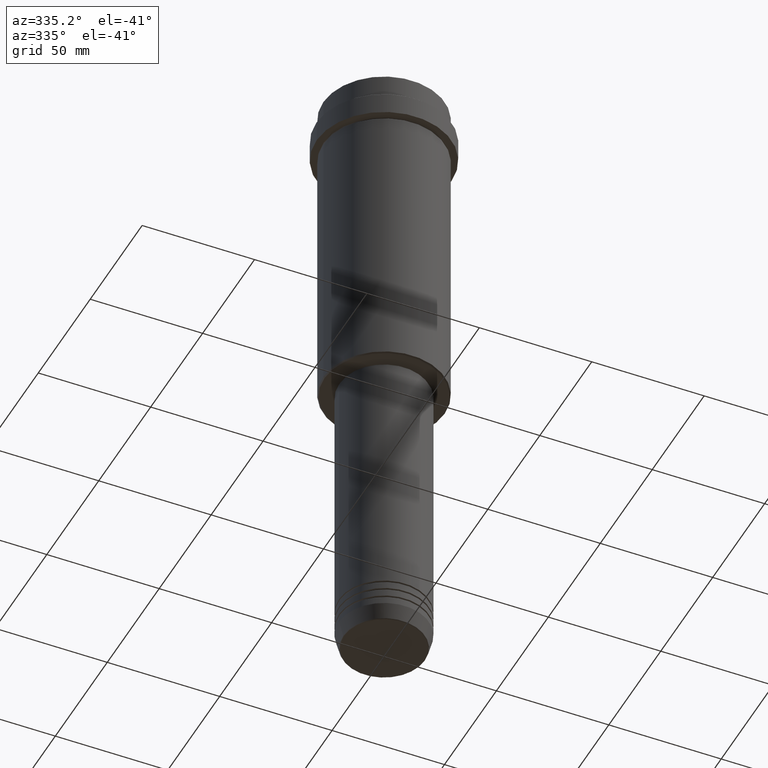
[diagram: clean part render]
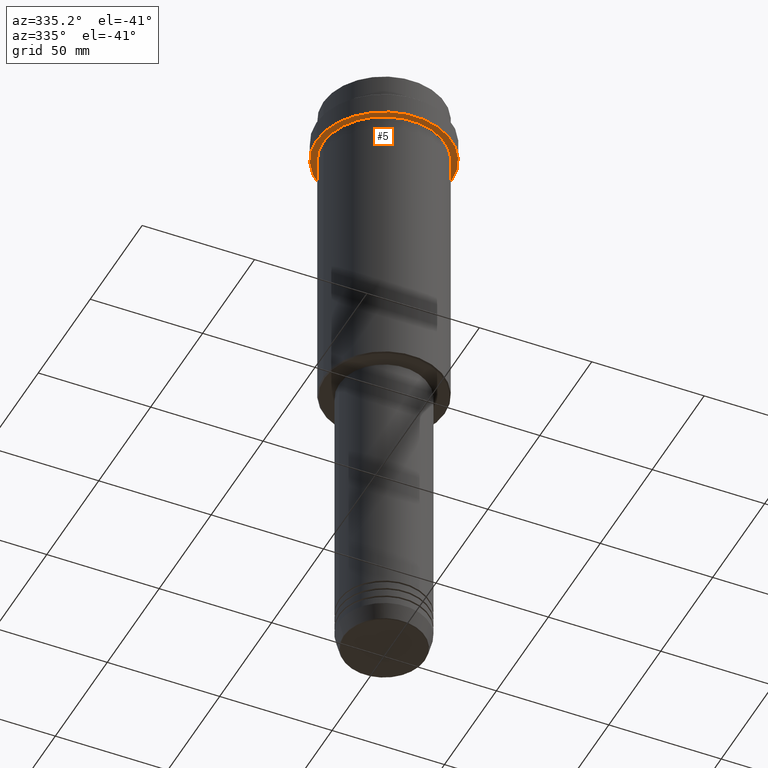
[diagram: same view with one face highlighted and labeled with its STEP entity id]
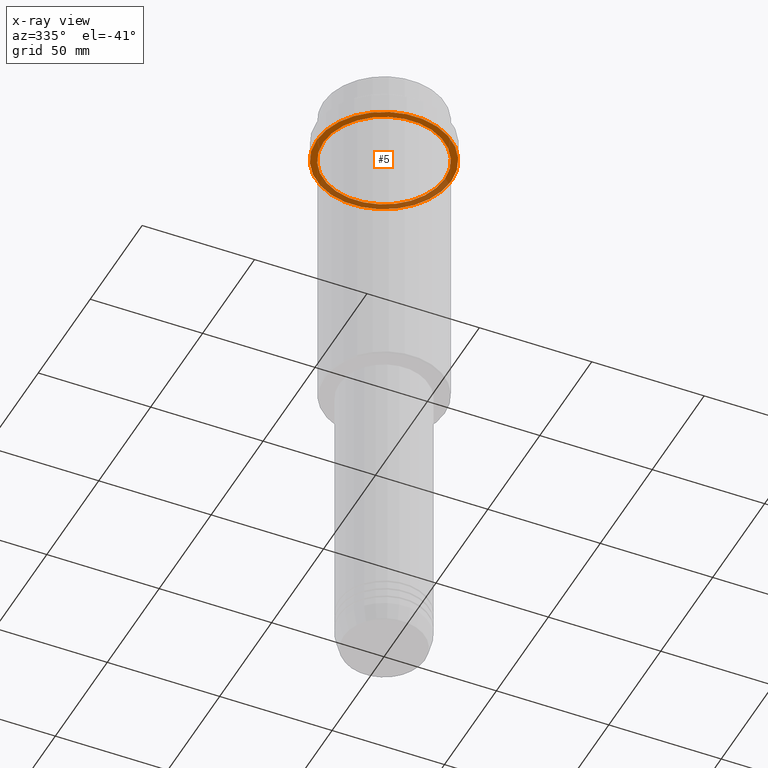
[diagram: x-ray of the same camera — body ghosted, the highlighted face saturated]
A machine part, auxiliary view. The second image highlights one B-rep face of the part: STEP entity #5.
The next image is the same camera in x-ray: the body ghosted, the highlighted face saturated — about 35% of this face is hidden behind the body in this view.
In plain terms, the highlighted planar face has unit normal (0, 0, -1).
Its self-contained STEP definition (entity closure, byte-faithful):
#5 = ADVANCED_FACE ( 'NONE', ( #279, #258 ), #1147, .T. ) ;
#11 = CARTESIAN_POINT ( 'NONE',  ( -26.99999999999999289, 0.000000000000000000, -22.00000000000000000 ) ) ;
#15 = VERTEX_POINT ( 'NONE', #1338 ) ;
#73 = CARTESIAN_POINT ( 'NONE',  ( -29.99999999999999645, 3.673940397442058389E-15, -22.00000000000000355 ) ) ;
#99 = DIRECTION ( 'NONE',  ( -0.000000000000000000, -0.000000000000000000, 1.000000000000000000 ) ) ;
#127 = ORIENTED_EDGE ( 'NONE', *, *, #245, .T. ) ;
#132 = AXIS2_PLACEMENT_3D ( 'NONE', #1023, #699, #688 ) ;
#150 = CARTESIAN_POINT ( 'NONE',  ( 0.000000000000000000, 0.000000000000000000, -22.00000000000000000 ) ) ;
#176 = DIRECTION ( 'NONE',  ( 1.000000000000000000, 0.000000000000000000, 0.000000000000000000 ) ) ;
#187 = VERTEX_POINT ( 'NONE', #73 ) ;
#202 = CIRCLE ( 'NONE', #1073, 26.99999999999999289 ) ;
#245 = EDGE_CURVE ( 'NONE', #634, #15, #202, .T. ) ;
#258 = FACE_OUTER_BOUND ( 'NONE', #1388, .T. ) ;
#279 = FACE_BOUND ( 'NONE', #362, .T. ) ;
#292 = VERTEX_POINT ( 'NONE', #1276 ) ;
#307 = DIRECTION ( 'NONE',  ( 1.000000000000000000, 0.000000000000000000, 0.000000000000000000 ) ) ;
#362 = EDGE_LOOP ( 'NONE', ( #127, #593 ) ) ;
#363 = EDGE_CURVE ( 'NONE', #187, #292, #946, .T. ) ;
#410 = DIRECTION ( 'NONE',  ( -1.000000000000000000, 0.000000000000000000, 0.000000000000000000 ) ) ;
#445 = CIRCLE ( 'NONE', #1249, 26.99999999999999289 ) ;
#487 = DIRECTION ( 'NONE',  ( -1.000000000000000000, 0.000000000000000000, 0.000000000000000000 ) ) ;
#532 = EDGE_CURVE ( 'NONE', #15, #634, #445, .T. ) ;
#541 = ORIENTED_EDGE ( 'NONE', *, *, #826, .F. ) ;
#593 = ORIENTED_EDGE ( 'NONE', *, *, #532, .T. ) ;
#634 = VERTEX_POINT ( 'NONE', #11 ) ;
#688 = DIRECTION ( 'NONE',  ( -1.000000000000000000, 0.000000000000000000, -0.000000000000000000 ) ) ;
#699 = DIRECTION ( 'NONE',  ( 0.000000000000000000, 0.000000000000000000, -1.000000000000000000 ) ) ;
#803 = DIRECTION ( 'NONE',  ( -0.000000000000000000, -0.000000000000000000, 1.000000000000000000 ) ) ;
#826 = EDGE_CURVE ( 'NONE', #292, #187, #1280, .T. ) ;
#827 = AXIS2_PLACEMENT_3D ( 'NONE', #1292, #1285, #307 ) ;
#907 = CARTESIAN_POINT ( 'NONE',  ( 0.000000000000000000, 0.000000000000000000, -22.00000000000000355 ) ) ;
#946 = CIRCLE ( 'NONE', #827, 29.99999999999999645 ) ;
#1023 = CARTESIAN_POINT ( 'NONE',  ( 0.000000000000000000, 29.99999999999999645, -22.00000000000000000 ) ) ;
#1070 = CARTESIAN_POINT ( 'NONE',  ( 0.000000000000000000, 0.000000000000000000, -22.00000000000000000 ) ) ;
#1073 = AXIS2_PLACEMENT_3D ( 'NONE', #1070, #99, #410 ) ;
#1147 = PLANE ( 'NONE',  #132 ) ;
#1165 = DIRECTION ( 'NONE',  ( -0.000000000000000000, -0.000000000000000000, 1.000000000000000000 ) ) ;
#1166 = ORIENTED_EDGE ( 'NONE', *, *, #363, .F. ) ;
#1212 = AXIS2_PLACEMENT_3D ( 'NONE', #907, #1165, #176 ) ;
#1249 = AXIS2_PLACEMENT_3D ( 'NONE', #150, #803, #487 ) ;
#1276 = CARTESIAN_POINT ( 'NONE',  ( 29.99999999999999645, 0.000000000000000000, -22.00000000000000355 ) ) ;
#1280 = CIRCLE ( 'NONE', #1212, 29.99999999999999645 ) ;
#1285 = DIRECTION ( 'NONE',  ( -0.000000000000000000, -0.000000000000000000, 1.000000000000000000 ) ) ;
#1292 = CARTESIAN_POINT ( 'NONE',  ( 0.000000000000000000, 0.000000000000000000, -22.00000000000000355 ) ) ;
#1338 = CARTESIAN_POINT ( 'NONE',  ( 26.99999999999999289, 3.306546357697852944E-15, -22.00000000000000000 ) ) ;
#1388 = EDGE_LOOP ( 'NONE', ( #541, #1166 ) ) ;